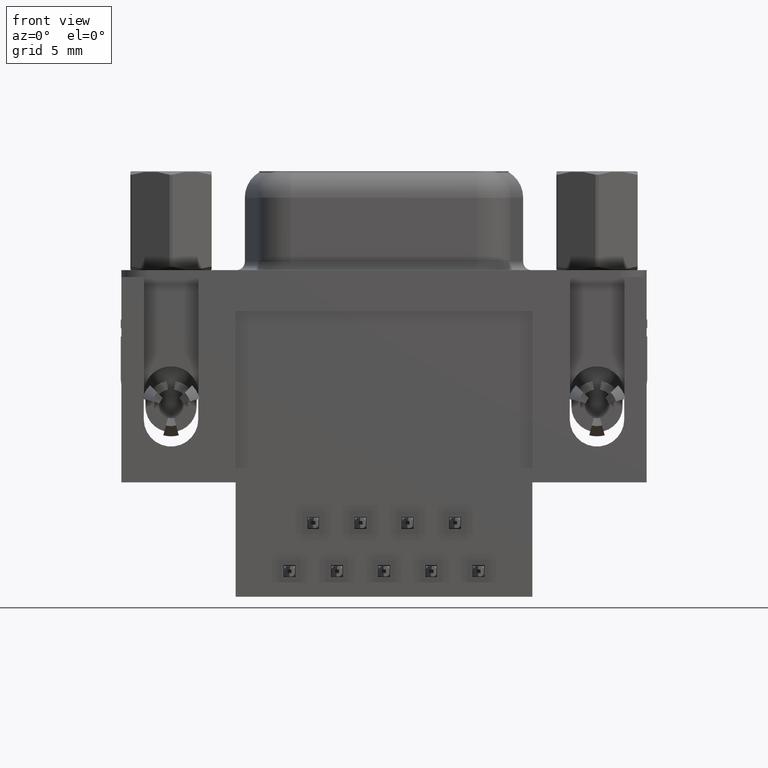
[diagram: clean part render]
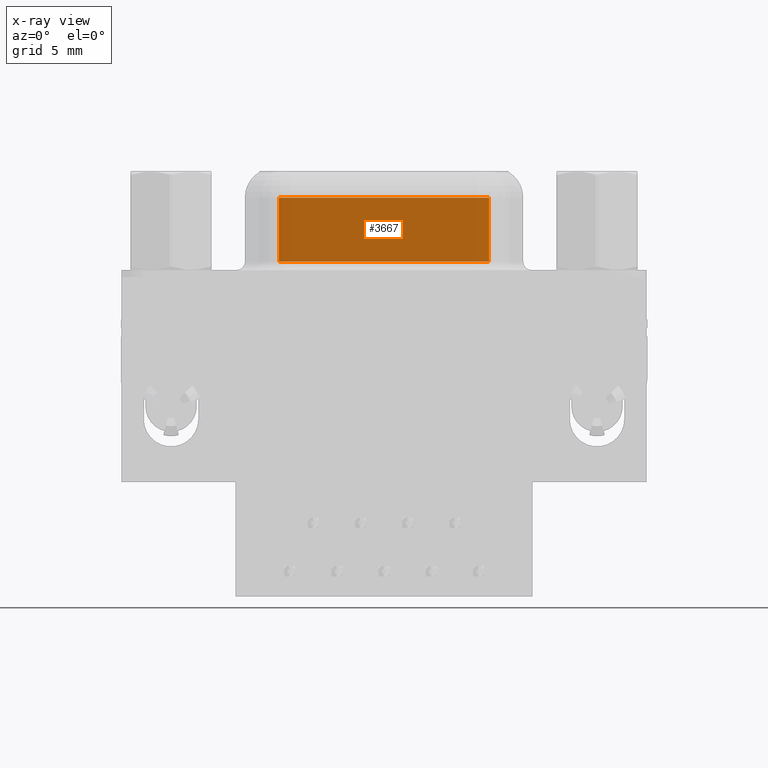
[diagram: x-ray — body ghosted, one internal face saturated and labeled with its STEP entity id]
A machine part, front view, then the same camera in x-ray: the body is ghosted and one INTERNAL B-rep face — a face not visible from any outside direction — is saturated and labeled: STEP entity #3667.
In plain terms, the highlighted planar face has unit normal (0, -1, 0).
Its self-contained STEP definition (entity closure, byte-faithful):
#607 = ORIENTED_EDGE ( 'NONE', *, *, #6895, .F. ) ;
#1440 = CARTESIAN_POINT ( 'NONE',  ( 6.330000000000000100, 3.550000000000000300, 6.400000000000000400 ) ) ;
#1493 = ORIENTED_EDGE ( 'NONE', *, *, #14163, .F. ) ;
#1543 = PLANE ( 'NONE',  #14334 ) ;
#3667 = ADVANCED_FACE ( 'NONE', ( #21047 ), #1543, .T. ) ;
#3914 = DIRECTION ( 'NONE',  ( 0.0000000000000000000, -0.0000000000000000000, -1.000000000000000000 ) ) ;
#4444 = VECTOR ( 'NONE', #28418, 1000.000000000000000 ) ;
#6355 = DIRECTION ( 'NONE',  ( 0.0000000000000000000, -0.0000000000000000000, -1.000000000000000000 ) ) ;
#6611 = CARTESIAN_POINT ( 'NONE',  ( 18.66000000000000400, 3.550000000000000700, 4.650000000000000400 ) ) ;
#6895 = EDGE_CURVE ( 'NONE', #14616, #26446, #15066, .T. ) ;
#10793 = LINE ( 'NONE', #30380, #22629 ) ;
#12464 = VECTOR ( 'NONE', #20219, 1000.000000000000000 ) ;
#13392 = VERTEX_POINT ( 'NONE', #22708 ) ;
#14163 = EDGE_CURVE ( 'NONE', #26446, #19657, #29538, .T. ) ;
#14298 = CARTESIAN_POINT ( 'NONE',  ( 6.330000000000000100, 3.550000000000000300, 0.8999999999999998000 ) ) ;
#14334 = AXIS2_PLACEMENT_3D ( 'NONE', #1440, #18039, #3914 ) ;
#14616 = VERTEX_POINT ( 'NONE', #6611 ) ;
#15066 = LINE ( 'NONE', #20523, #20624 ) ;
#17934 = EDGE_CURVE ( 'NONE', #13392, #19657, #24980, .T. ) ;
#18039 = DIRECTION ( 'NONE',  ( 0.0000000000000000000, -1.000000000000000000, 0.0000000000000000000 ) ) ;
#19657 = VERTEX_POINT ( 'NONE', #20984 ) ;
#19732 = CARTESIAN_POINT ( 'NONE',  ( 6.330000000000000100, 3.550000000000000300, 6.400000000000000400 ) ) ;
#20219 = DIRECTION ( 'NONE',  ( -0.0000000000000000000, -0.0000000000000000000, -1.000000000000000000 ) ) ;
#20523 = CARTESIAN_POINT ( 'NONE',  ( 18.66000000000000400, 3.550000000000000300, 6.400000000000000400 ) ) ;
#20624 = VECTOR ( 'NONE', #6355, 1000.000000000000000 ) ;
#20984 = CARTESIAN_POINT ( 'NONE',  ( 6.330000000000000100, 3.550000000000000300, 0.8999999999999998000 ) ) ;
#21021 = DIRECTION ( 'NONE',  ( 1.000000000000000000, 0.0000000000000000000, 0.0000000000000000000 ) ) ;
#21047 = FACE_OUTER_BOUND ( 'NONE', #22288, .T. ) ;
#22177 = EDGE_CURVE ( 'NONE', #13392, #14616, #10793, .T. ) ;
#22288 = EDGE_LOOP ( 'NONE', ( #23655, #1493, #607, #25295 ) ) ;
#22629 = VECTOR ( 'NONE', #21021, 1000.000000000000000 ) ;
#22708 = CARTESIAN_POINT ( 'NONE',  ( 6.330000000000000100, 3.550000000000000300, 4.650000000000000400 ) ) ;
#23307 = CARTESIAN_POINT ( 'NONE',  ( 18.66000000000000400, 3.550000000000000300, 0.8999999999999998000 ) ) ;
#23655 = ORIENTED_EDGE ( 'NONE', *, *, #17934, .T. ) ;
#24980 = LINE ( 'NONE', #19732, #12464 ) ;
#25295 = ORIENTED_EDGE ( 'NONE', *, *, #22177, .F. ) ;
#26446 = VERTEX_POINT ( 'NONE', #23307 ) ;
#28418 = DIRECTION ( 'NONE',  ( -1.000000000000000000, -0.0000000000000000000, -0.0000000000000000000 ) ) ;
#29538 = LINE ( 'NONE', #14298, #4444 ) ;
#30380 = CARTESIAN_POINT ( 'NONE',  ( 6.330000000000000100, 3.550000000000000300, 4.650000000000000400 ) ) ;